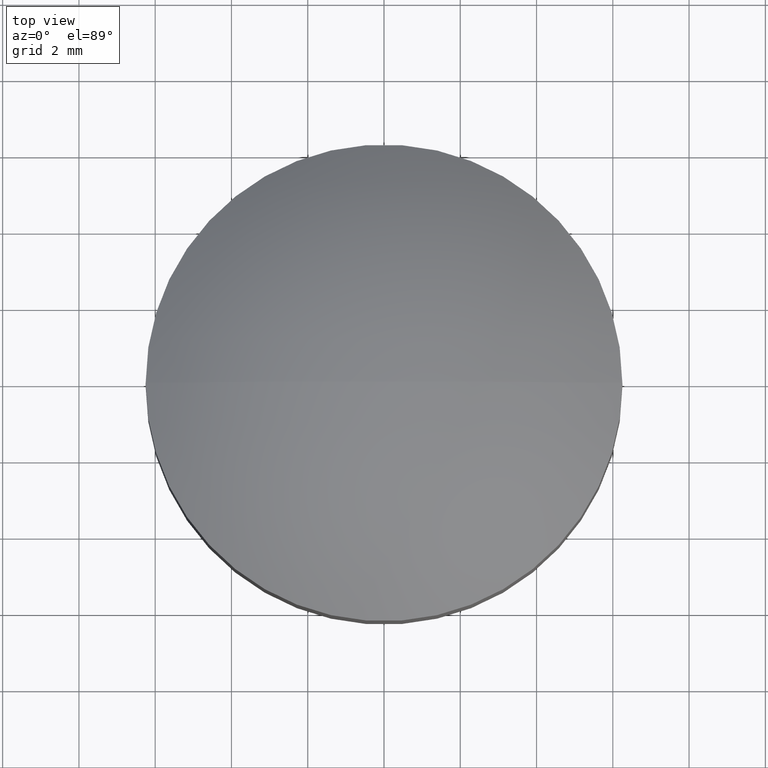
[diagram: clean part render]
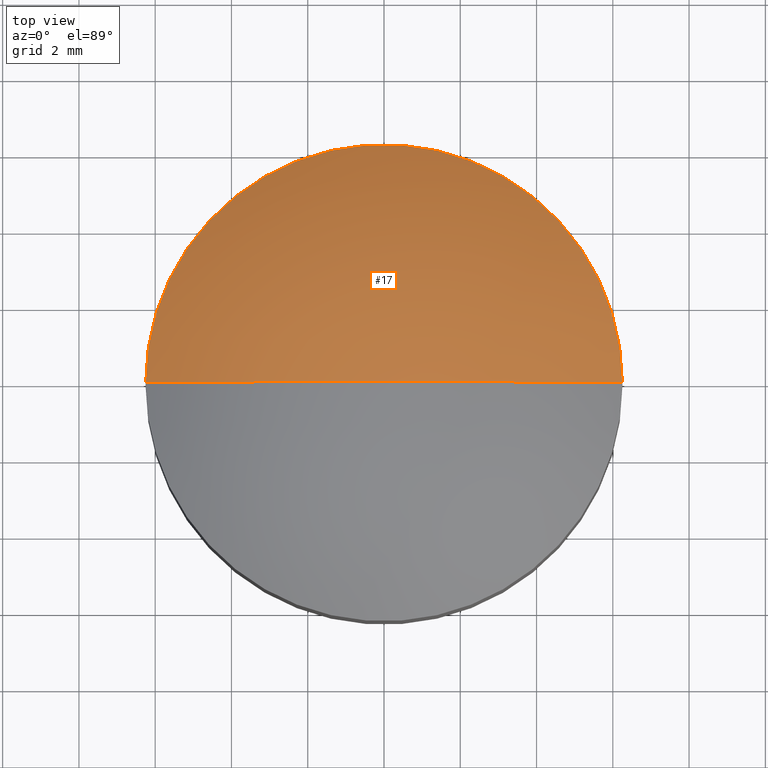
[diagram: same view with one face highlighted and labeled with its STEP entity id]
A machine part, top view. The second image highlights one B-rep face of the part: STEP entity #17.
In plain terms, the highlighted spherical surface has radius 10.7656 mm.
Its self-contained STEP definition (entity closure, byte-faithful):
#10 = EDGE_CURVE ( 'NONE', #21, #160, #102, .T. ) ;
#17 = ADVANCED_FACE ( 'NONE', ( #42 ), #96, .T. ) ;
#19 = AXIS2_PLACEMENT_3D ( 'NONE', #88, #128, #161 ) ;
#21 = VERTEX_POINT ( 'NONE', #95 ) ;
#23 = CARTESIAN_POINT ( 'NONE',  ( 4.336808689942017736E-16, 0.000000000000000000, -3.265625000000002220 ) ) ;
#29 = CARTESIAN_POINT ( 'NONE',  ( 4.336808689942017736E-16, 0.000000000000000000, -3.265625000000002220 ) ) ;
#40 = DIRECTION ( 'NONE',  ( 0.000000000000000000, 1.000000000000000000, 0.000000000000000000 ) ) ;
#42 = FACE_OUTER_BOUND ( 'NONE', #74, .T. ) ;
#46 = CIRCLE ( 'NONE', #55, 10.76562500000000000 ) ;
#51 = AXIS2_PLACEMENT_3D ( 'NONE', #29, #98, #180 ) ;
#55 = AXIS2_PLACEMENT_3D ( 'NONE', #23, #156, #91 ) ;
#61 = ORIENTED_EDGE ( 'NONE', *, *, #146, .T. ) ;
#74 = EDGE_LOOP ( 'NONE', ( #89, #61, #212 ) ) ;
#88 = CARTESIAN_POINT ( 'NONE',  ( 0.000000000000000000, 0.000000000000000000, 5.500000000000000000 ) ) ;
#89 = ORIENTED_EDGE ( 'NONE', *, *, #165, .F. ) ;
#91 = DIRECTION ( 'NONE',  ( 1.000000000000000000, -1.224646799147353207E-16, 0.000000000000000000 ) ) ;
#94 = CARTESIAN_POINT ( 'NONE',  ( 6.250000000000000000, 7.654042494670957606E-16, 5.500000000000000000 ) ) ;
#95 = CARTESIAN_POINT ( 'NONE',  ( -6.250000000000000000, 0.000000000000000000, 5.500000000000000000 ) ) ;
#96 = SPHERICAL_SURFACE ( 'NONE', #51, 10.76562500000000000 ) ;
#98 = DIRECTION ( 'NONE',  ( -0.000000000000000000, -1.000000000000000000, 0.000000000000000000 ) ) ;
#102 = CIRCLE ( 'NONE', #199, 10.76562500000000000 ) ;
#103 = CARTESIAN_POINT ( 'NONE',  ( -2.255235408593345021E-16, 0.000000000000000000, 7.499999999999999112 ) ) ;
#123 = CARTESIAN_POINT ( 'NONE',  ( 4.336808689942017736E-16, 0.000000000000000000, -3.265625000000002220 ) ) ;
#128 = DIRECTION ( 'NONE',  ( 0.000000000000000000, 0.000000000000000000, 1.000000000000000000 ) ) ;
#145 = VERTEX_POINT ( 'NONE', #94 ) ;
#146 = EDGE_CURVE ( 'NONE', #145, #21, #151, .T. ) ;
#151 = CIRCLE ( 'NONE', #19, 6.250000000000000000 ) ;
#156 = DIRECTION ( 'NONE',  ( -1.224646799147353207E-16, -1.000000000000000000, -0.000000000000000000 ) ) ;
#160 = VERTEX_POINT ( 'NONE', #103 ) ;
#161 = DIRECTION ( 'NONE',  ( 1.000000000000000000, 0.000000000000000000, 0.000000000000000000 ) ) ;
#165 = EDGE_CURVE ( 'NONE', #145, #160, #46, .T. ) ;
#180 = DIRECTION ( 'NONE',  ( -1.000000000000000000, 0.000000000000000000, 0.000000000000000000 ) ) ;
#189 = DIRECTION ( 'NONE',  ( 0.000000000000000000, 0.000000000000000000, 1.000000000000000000 ) ) ;
#199 = AXIS2_PLACEMENT_3D ( 'NONE', #123, #40, #189 ) ;
#212 = ORIENTED_EDGE ( 'NONE', *, *, #10, .T. ) ;